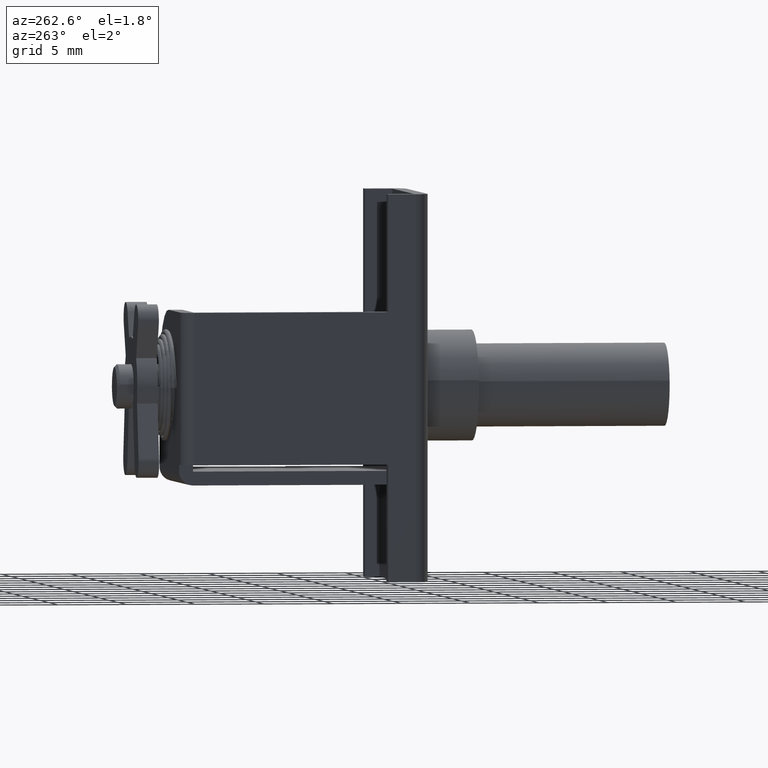
[diagram: clean part render]
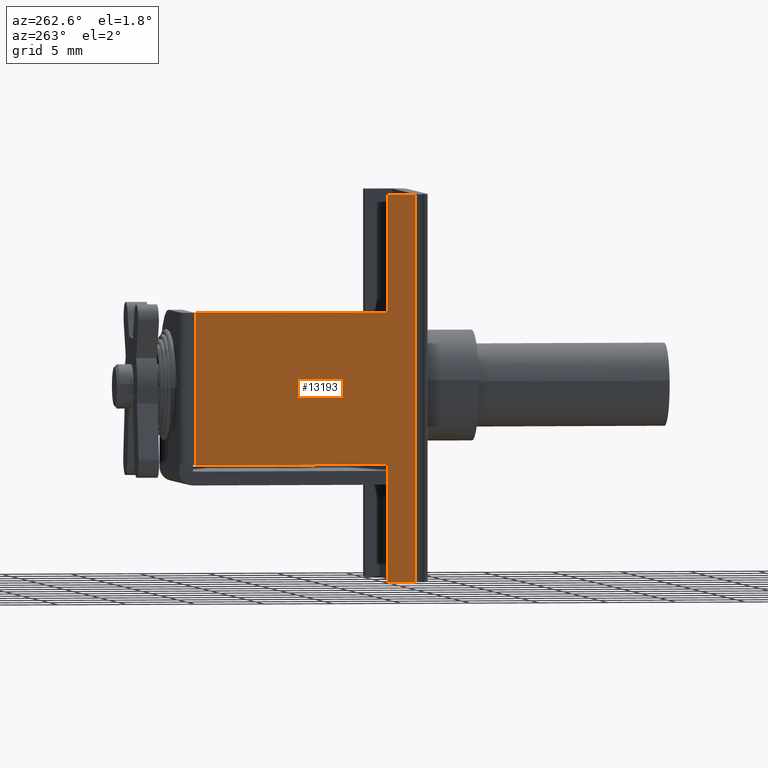
[diagram: same view with one face highlighted and labeled with its STEP entity id]
A machine part, auxiliary view. The second image highlights one B-rep face of the part: STEP entity #13193.
In plain terms, the highlighted face is a freeform B-spline surface patch.
Its self-contained STEP definition (entity closure, byte-faithful):
#12912=CARTESIAN_POINT('',(17.0,7.0,5.500000000000000));
#12913=VERTEX_POINT('',#12912);
#12934=CARTESIAN_POINT('',(17.0,7.0,-5.499999999999840));
#12935=VERTEX_POINT('',#12934);
#12949=CARTESIAN_POINT('',(17.0,7.0,-5.499999999999840));
#12950=CARTESIAN_POINT('',(17.0,7.0,5.500000000000000));
#12951=QUASI_UNIFORM_CURVE('',1,(#12949,#12950),.UNSPECIFIED.,.F.,.U.);
#12952=EDGE_CURVE('',#12935,#12913,#12951,.T.);
#13014=CARTESIAN_POINT('',(3.0,7.0,14.000000277756600));
#13015=VERTEX_POINT('',#13014);
#13021=CARTESIAN_POINT('',(1.0,7.0,14.000000277756600));
#13022=VERTEX_POINT('',#13021);
#13023=CARTESIAN_POINT('',(3.0,7.0,14.000000277756600));
#13024=CARTESIAN_POINT('',(1.0,7.0,14.000000277756600));
#13025=QUASI_UNIFORM_CURVE('',1,(#13023,#13024),.UNSPECIFIED.,.F.,.U.);
#13026=EDGE_CURVE('',#13015,#13022,#13025,.T.);
#13128=CARTESIAN_POINT('',(1.0,7.0,-13.999999722243301));
#13129=VERTEX_POINT('',#13128);
#13130=CARTESIAN_POINT('',(1.0,7.0,-13.999999722243301));
#13131=CARTESIAN_POINT('',(1.0,7.0,14.000000277756600));
#13132=QUASI_UNIFORM_CURVE('',1,(#13130,#13131),.UNSPECIFIED.,.F.,.U.);
#13133=EDGE_CURVE('',#13129,#13022,#13132,.T.);
#13152=CARTESIAN_POINT('',(0.200800031011106,7.0,-15.398599930817831));
#13153=CARTESIAN_POINT('',(0.200800031011106,7.0,15.398600987010150));
#13154=CARTESIAN_POINT('',(17.799200398142339,7.0,-15.398599930817831));
#13155=CARTESIAN_POINT('',(17.799200398142339,7.0,15.398600987010150));
#13156=B_SPLINE_SURFACE_WITH_KNOTS('',1,1,((#13152,#13154),(#13153,#13155)),.UNSPECIFIED.,.F.,.F.,.U.,(2,2),(2,2),(0.0,30.797200917827979),(0.0,17.598400367131230),.UNSPECIFIED.);
#13157=ORIENTED_EDGE('',*,*,#13026,.F.);
#13158=CARTESIAN_POINT('',(3.0,7.0,5.500000000000000));
#13159=VERTEX_POINT('',#13158);
#13160=CARTESIAN_POINT('',(3.0,7.0,5.500000000000000));
#13161=CARTESIAN_POINT('',(3.0,7.0,14.000000277756600));
#13162=QUASI_UNIFORM_CURVE('',1,(#13160,#13161),.UNSPECIFIED.,.F.,.U.);
#13163=EDGE_CURVE('',#13159,#13015,#13162,.T.);
#13164=ORIENTED_EDGE('',*,*,#13163,.F.);
#13165=CARTESIAN_POINT('',(17.0,7.0,5.500000000000000));
#13166=CARTESIAN_POINT('',(3.0,7.0,5.500000000000000));
#13167=QUASI_UNIFORM_CURVE('',1,(#13165,#13166),.UNSPECIFIED.,.F.,.U.);
#13168=EDGE_CURVE('',#12913,#13159,#13167,.T.);
#13169=ORIENTED_EDGE('',*,*,#13168,.F.);
#13170=ORIENTED_EDGE('',*,*,#12952,.F.);
#13171=CARTESIAN_POINT('',(3.0,7.0,-5.499999999999840));
#13172=VERTEX_POINT('',#13171);
#13173=CARTESIAN_POINT('',(17.0,7.0,-5.499999999999840));
#13174=CARTESIAN_POINT('',(3.0,7.0,-5.499999999999840));
#13175=QUASI_UNIFORM_CURVE('',1,(#13173,#13174),.UNSPECIFIED.,.F.,.U.);
#13176=EDGE_CURVE('',#12935,#13172,#13175,.T.);
#13177=ORIENTED_EDGE('',*,*,#13176,.T.);
#13178=CARTESIAN_POINT('',(3.0,7.0,-13.999999722243301));
#13179=VERTEX_POINT('',#13178);
#13180=CARTESIAN_POINT('',(3.0,7.0,-13.999999722243301));
#13181=CARTESIAN_POINT('',(3.0,7.0,-5.499999999999840));
#13182=QUASI_UNIFORM_CURVE('',1,(#13180,#13181),.UNSPECIFIED.,.F.,.U.);
#13183=EDGE_CURVE('',#13179,#13172,#13182,.T.);
#13184=ORIENTED_EDGE('',*,*,#13183,.F.);
#13185=CARTESIAN_POINT('',(3.0,7.0,-13.999999722243301));
#13186=CARTESIAN_POINT('',(1.0,7.0,-13.999999722243301));
#13187=QUASI_UNIFORM_CURVE('',1,(#13185,#13186),.UNSPECIFIED.,.F.,.U.);
#13188=EDGE_CURVE('',#13179,#13129,#13187,.T.);
#13189=ORIENTED_EDGE('',*,*,#13188,.T.);
#13190=ORIENTED_EDGE('',*,*,#13133,.T.);
#13191=EDGE_LOOP('',(#13157,#13164,#13169,#13170,#13177,#13184,#13189,#13190));
#13192=FACE_OUTER_BOUND('',#13191,.T.);
#13193=ADVANCED_FACE('',(#13192),#13156,.T.);